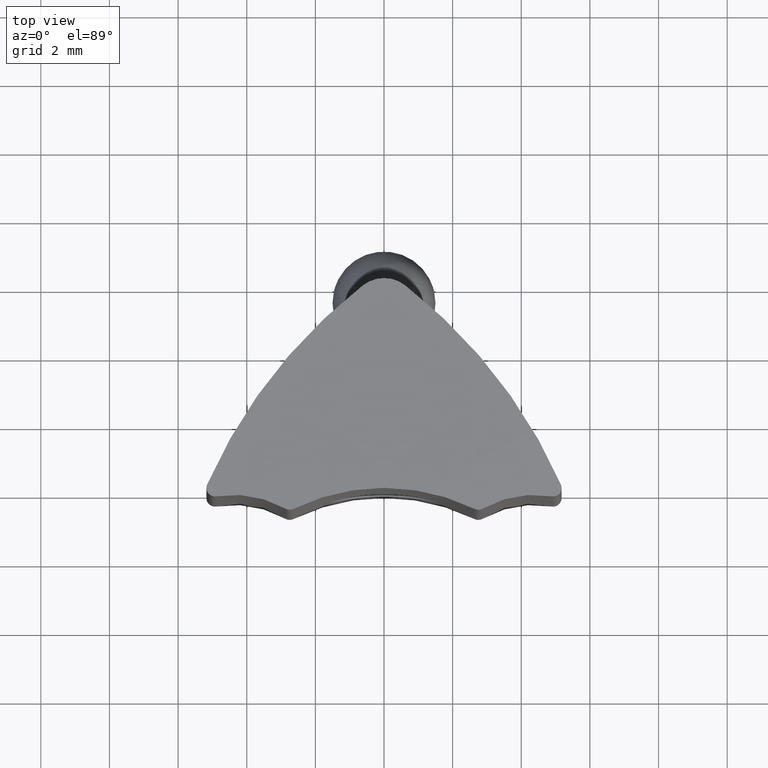
[diagram: clean part render]
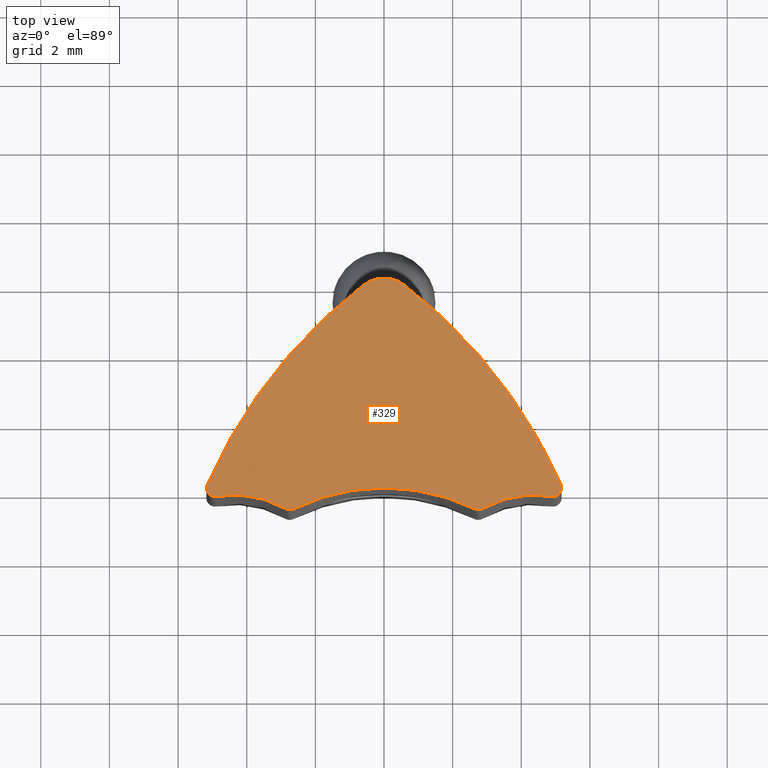
[diagram: same view with one face highlighted and labeled with its STEP entity id]
A machine part, top view. The second image highlights one B-rep face of the part: STEP entity #329.
In plain terms, the highlighted planar face has unit normal (0, 0, 1).
Its self-contained STEP definition (entity closure, byte-faithful):
#15=PLANE('',#389);
#89=FACE_OUTER_BOUND('',#107,.T.);
#107=EDGE_LOOP('',(#301,#302,#303,#304,#305,#306,#307,#308,#309,#310));
#110=CIRCLE('',#357,15.);
#111=CIRCLE('',#361,15.);
#113=CIRCLE('',#364,1.);
#116=CIRCLE('',#369,0.25);
#118=CIRCLE('',#372,3.);
#120=CIRCLE('',#375,0.25);
#122=CIRCLE('',#378,0.25);
#124=CIRCLE('',#381,3.);
#126=CIRCLE('',#384,0.25);
#128=CIRCLE('',#387,6.);
#139=VERTEX_POINT('',#576);
#140=VERTEX_POINT('',#578);
#148=VERTEX_POINT('',#675);
#149=VERTEX_POINT('',#677);
#154=VERTEX_POINT('',#692);
#155=VERTEX_POINT('',#694);
#157=VERTEX_POINT('',#700);
#159=VERTEX_POINT('',#709);
#161=VERTEX_POINT('',#715);
#163=VERTEX_POINT('',#721);
#174=EDGE_CURVE('',#140,#139,#110,.T.);
#187=EDGE_CURVE('',#149,#148,#111,.T.);
#191=EDGE_CURVE('',#148,#140,#113,.T.);
#195=EDGE_CURVE('',#155,#154,#116,.T.);
#198=EDGE_CURVE('',#157,#155,#118,.T.);
#201=EDGE_CURVE('',#139,#157,#120,.T.);
#203=EDGE_CURVE('',#159,#149,#122,.T.);
#206=EDGE_CURVE('',#161,#159,#124,.T.);
#209=EDGE_CURVE('',#163,#161,#126,.T.);
#212=EDGE_CURVE('',#154,#163,#128,.T.);
#301=ORIENTED_EDGE('',*,*,#212,.T.);
#302=ORIENTED_EDGE('',*,*,#209,.T.);
#303=ORIENTED_EDGE('',*,*,#206,.T.);
#304=ORIENTED_EDGE('',*,*,#203,.T.);
#305=ORIENTED_EDGE('',*,*,#187,.T.);
#306=ORIENTED_EDGE('',*,*,#191,.T.);
#307=ORIENTED_EDGE('',*,*,#174,.T.);
#308=ORIENTED_EDGE('',*,*,#201,.T.);
#309=ORIENTED_EDGE('',*,*,#198,.T.);
#310=ORIENTED_EDGE('',*,*,#195,.T.);
#329=ADVANCED_FACE('',(#89),#15,.T.);
#357=AXIS2_PLACEMENT_3D('',#579,#403,#404);
#361=AXIS2_PLACEMENT_3D('',#678,#415,#416);
#364=AXIS2_PLACEMENT_3D('',#685,#423,#424);
#369=AXIS2_PLACEMENT_3D('',#695,#434,#435);
#372=AXIS2_PLACEMENT_3D('',#701,#441,#442);
#375=AXIS2_PLACEMENT_3D('',#705,#448,#449);
#378=AXIS2_PLACEMENT_3D('',#710,#454,#455);
#381=AXIS2_PLACEMENT_3D('',#716,#461,#462);
#384=AXIS2_PLACEMENT_3D('',#722,#468,#469);
#387=AXIS2_PLACEMENT_3D('',#726,#475,#476);
#389=AXIS2_PLACEMENT_3D('',#728,#479,#480);
#403=DIRECTION('center_axis',(0.,0.,1.));
#404=DIRECTION('ref_axis',(0.61194185594615,-0.790902753150589,0.));
#415=DIRECTION('center_axis',(0.,0.,1.));
#416=DIRECTION('ref_axis',(-0.914724473440414,-0.404078133148971,0.));
#423=DIRECTION('center_axis',(0.,0.,1.));
#424=DIRECTION('ref_axis',(-0.61194185594615,-0.790902753150589,0.));
#434=DIRECTION('center_axis',(0.,0.,1.));
#435=DIRECTION('ref_axis',(0.499578080536772,0.866268862101827,0.));
#441=DIRECTION('center_axis',(0.,0.,-1.));
#442=DIRECTION('ref_axis',(0.499578080536772,0.866268862101827,0.));
#448=DIRECTION('center_axis',(0.,0.,1.));
#449=DIRECTION('ref_axis',(0.914724473440414,-0.404078133148971,0.));
#454=DIRECTION('center_axis',(0.,0.,1.));
#455=DIRECTION('ref_axis',(0.169652688694,0.985503914360008,0.));
#461=DIRECTION('center_axis',(0.,0.,-1.));
#462=DIRECTION('ref_axis',(0.169652688693997,0.985503914360008,0.));
#468=DIRECTION('center_axis',(0.,0.,1.));
#469=DIRECTION('ref_axis',(0.440000000000006,0.897997772825743,0.));
#475=DIRECTION('center_axis',(0.,0.,-1.));
#476=DIRECTION('ref_axis',(0.44,0.897997772825746,0.));
#479=DIRECTION('center_axis',(0.,0.,1.));
#480=DIRECTION('ref_axis',(1.,0.,0.));
#576=CARTESIAN_POINT('',(-5.1536811183601,0.101019533287241,17.));
#578=CARTESIAN_POINT('',(-0.611941855946148,5.9033888333115,17.));
#579=CARTESIAN_POINT('Origin',(8.56718598324611,-5.96015246394733,17.));
#675=CARTESIAN_POINT('',(0.611941855946153,5.9033888333115,17.));
#677=CARTESIAN_POINT('',(5.1536811183601,0.101019533287243,17.));
#678=CARTESIAN_POINT('Origin',(-8.5671859832461,-5.96015246394733,17.));
#685=CARTESIAN_POINT('Origin',(3.9154830615245E-25,5.11248608016091,17.));
#692=CARTESIAN_POINT('',(-2.64,-0.612013363045524,17.));
#694=CARTESIAN_POINT('',(-2.87489452013419,-0.604081135364544,17.));
#695=CARTESIAN_POINT('Origin',(-2.75,-0.387513919839087,17.));
#700=CARTESIAN_POINT('',(-4.8825868278265,-0.246375978590002,17.));
#701=CARTESIAN_POINT('Origin',(-4.37362876174451,-3.20288772167003,17.));
#705=CARTESIAN_POINT('Origin',(-4.925,0.,17.));
#709=CARTESIAN_POINT('',(4.8825868278265,-0.246375978590002,17.));
#710=CARTESIAN_POINT('Origin',(4.925,0.,17.));
#715=CARTESIAN_POINT('',(2.87489452013419,-0.604081135364544,17.));
#716=CARTESIAN_POINT('Origin',(4.37362876174451,-3.20288772167003,17.));
#721=CARTESIAN_POINT('',(2.64,-0.612013363045523,17.));
#722=CARTESIAN_POINT('Origin',(2.75,-0.387513919839088,17.));
#726=CARTESIAN_POINT('Origin',(0.,-6.,17.));
#728=CARTESIAN_POINT('Origin',(2.0921956826649E-15,1.92014880889303,17.));